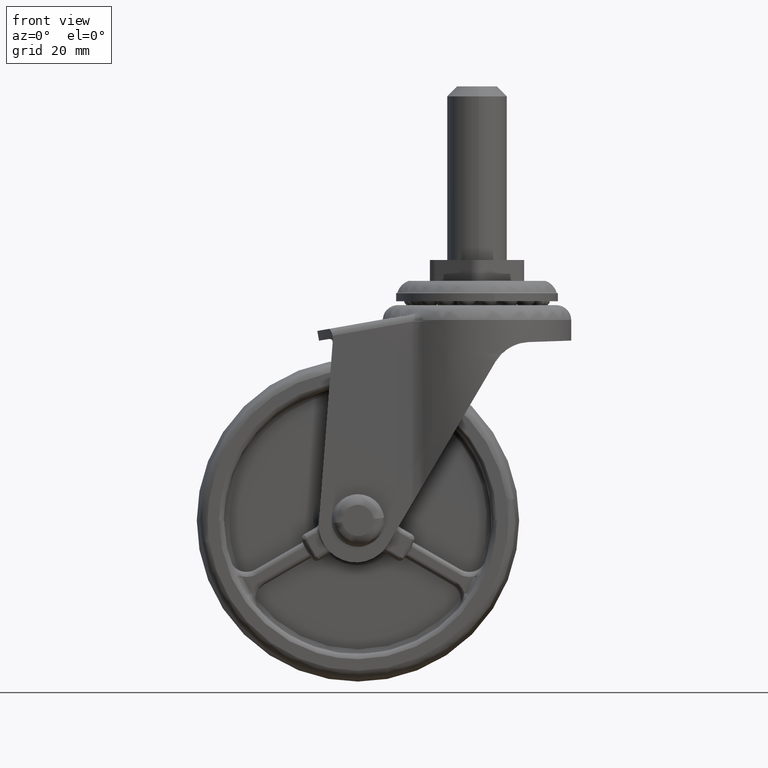
[diagram: clean part render]
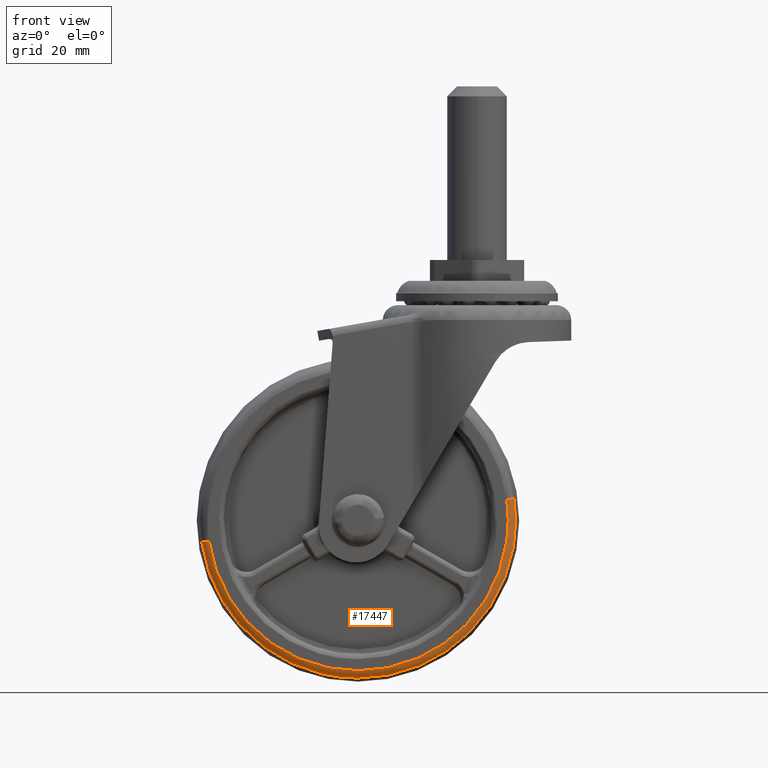
[diagram: same view with one face highlighted and labeled with its STEP entity id]
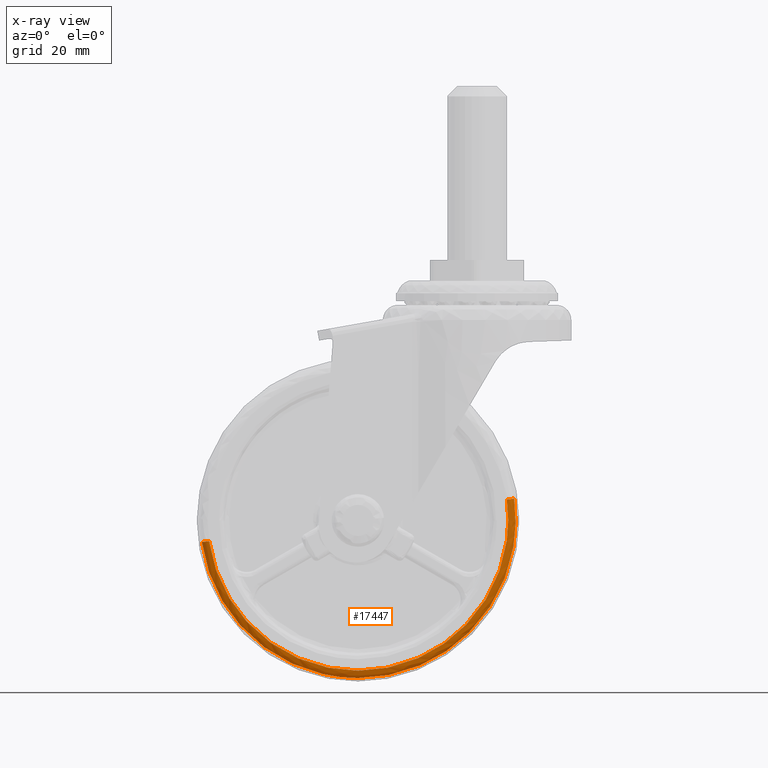
[diagram: x-ray of the same camera — body ghosted, the highlighted face saturated]
A machine part, front view. The second image highlights one B-rep face of the part: STEP entity #17447.
The next image is the same camera in x-ray: the body ghosted, the highlighted face saturated — about 0% of this face is hidden behind the body in this view.
In plain terms, the highlighted face is a freeform B-spline surface patch.
Its self-contained STEP definition (entity closure, byte-faithful):
#17287=CARTESIAN_POINT('',(0.0,-10.500000000000000,-30.303546999999998));
#17288=VERTEX_POINT('',#17287);
#17289=CARTESIAN_POINT('',(30.014494372817360,-10.500000000000000,4.175534551132611));
#17290=VERTEX_POINT('',#17289);
#17291=CARTESIAN_POINT('',(0.0,-10.500000000000000,-30.303546999999998));
#17292=CARTESIAN_POINT('',(30.303547003288955,-10.499999999999998,-30.303546999542448));
#17293=CARTESIAN_POINT('',(30.303547007067120,-10.500000000000000,9.831575E-010));
#17294=CARTESIAN_POINT('',(30.303547007328667,-10.499999999999998,2.097772153836657));
#17295=CARTESIAN_POINT('',(30.014494372817367,-10.500000000000000,4.175534551132611));
#17303=(BOUNDED_CURVE()B_SPLINE_CURVE(2,(#17291,#17292,#17293,#17294,#17295),.UNSPECIFIED.,.F.,.U.)B_SPLINE_CURVE_WITH_KNOTS((3,2,3),(0.0,0.250000000000000,0.273792609107990),.UNSPECIFIED.)CURVE()GEOMETRIC_REPRESENTATION_ITEM()RATIONAL_B_SPLINE_CURVE((1.0,0.707106781186547,1.0,0.972125224537562,0.949556158167530))REPRESENTATION_ITEM(''));
#17304=EDGE_CURVE('',#17288,#17290,#17303,.T.);
#17321=CARTESIAN_POINT('',(-30.014494372817360,-10.500000000000000,-4.175534551132609));
#17322=VERTEX_POINT('',#17321);
#17338=CARTESIAN_POINT('',(-30.014494372817360,-10.500000000000000,-4.175534551132610));
#17339=CARTESIAN_POINT('',(-26.379636577269668,-10.500000000000000,-30.303547000525612));
#17340=CARTESIAN_POINT('',(0.0,-10.500000000000000,-30.303546999999998));
#17348=(BOUNDED_CURVE()B_SPLINE_CURVE(2,(#17338,#17339,#17340),.UNSPECIFIED.,.F.,.U.)B_SPLINE_CURVE_WITH_KNOTS((3,3),(0.773792609107990,1.0),.UNSPECIFIED.)CURVE()GEOMETRIC_REPRESENTATION_ITEM()RATIONAL_B_SPLINE_CURVE((0.949556158167531,0.734981556648985,1.0))REPRESENTATION_ITEM(''));
#17349=EDGE_CURVE('',#17322,#17288,#17348,.T.);
#17360=CARTESIAN_POINT('',(-31.494144311785970,-9.135144101969331,-4.381379412663786));
#17361=CARTESIAN_POINT('',(-27.112764899122183,-9.135144101969329,-35.875523724449764));
#17362=CARTESIAN_POINT('',(4.381379412663790,-9.135144101969331,-31.494144311785970));
#17363=CARTESIAN_POINT('',(35.875523724449764,-9.135144101969329,-27.112764899122183));
#17364=CARTESIAN_POINT('',(31.494144311785970,-9.135144101969331,4.381379412663788));
#17365=CARTESIAN_POINT('',(-31.363735076396864,-10.590586768174505,-4.363237235708647));
#17366=CARTESIAN_POINT('',(-27.000497840688215,-10.590586768174502,-35.726972312105502));
#17367=CARTESIAN_POINT('',(4.363237235708652,-10.590586768174505,-31.363735076396864));
#17368=CARTESIAN_POINT('',(35.726972312105502,-10.590586768174502,-27.000497840688215));
#17369=CARTESIAN_POINT('',(31.363735076396864,-10.590586768174505,4.363237235708650));
#17370=CARTESIAN_POINT('',(-29.919265085907959,-10.496915453140973,-4.162286512428628));
#17371=CARTESIAN_POINT('',(-25.756978573479334,-10.496915453140973,-34.081551598336588));
#17372=CARTESIAN_POINT('',(4.162286512428632,-10.496915453140973,-29.919265085907959));
#17373=CARTESIAN_POINT('',(34.081551598336588,-10.496915453140973,-25.756978573479334));
#17374=CARTESIAN_POINT('',(29.919265085907959,-10.496915453140973,4.162286512428629));
#17382=(BOUNDED_SURFACE()B_SPLINE_SURFACE(2,2,((#17360,#17365,#17370),(#17361,#17366,#17371),(#17362,#17367,#17372),(#17363,#17368,#17373),(#17364,#17369,#17374)),.UNSPECIFIED.,.F.,.F.,.U.)B_SPLINE_SURFACE_WITH_KNOTS((3,2,3),(3,3),(0.0,52.683734553727497,105.367469107454990),(0.0,2.439577379660910),.UNSPECIFIED.)GEOMETRIC_REPRESENTATION_ITEM()RATIONAL_B_SPLINE_SURFACE(((0.916729878597083,0.657098286178849,0.918059102836861),(0.648225913672318,0.464638654063123,0.649165817145983),(0.916729878597083,0.657098286178849,0.918059102836861),(0.648225913672318,0.464638654063123,0.649165817145983),(0.916729878597083,0.657098286178849,0.918059102836861)))REPRESENTATION_ITEM('')SURFACE());
#17383=CARTESIAN_POINT('',(-31.482499973317250,-9.230757934175660,-4.379759484090847));
#17384=VERTEX_POINT('',#17383);
#17385=CARTESIAN_POINT('',(0.0,-9.230754666406810,-31.785691290276240));
#17386=VERTEX_POINT('',#17385);
#17387=CARTESIAN_POINT('',(-31.482499973317243,-9.230757934175660,-4.379759484090848));
#17388=CARTESIAN_POINT('',(-27.669861929599854,-9.230754730769405,-31.785691346694367));
#17389=CARTESIAN_POINT('',(0.0,-9.230754666406810,-31.785691290276240));
#17397=(BOUNDED_CURVE()B_SPLINE_CURVE(2,(#17387,#17388,#17389),.UNSPECIFIED.,.F.,.U.)B_SPLINE_CURVE_WITH_KNOTS((3,3),(0.773792605282419,1.0),.UNSPECIFIED.)CURVE()GEOMETRIC_REPRESENTATION_ITEM()RATIONAL_B_SPLINE_CURVE((0.949556165425211,0.734981552167050,1.0))REPRESENTATION_ITEM(''));
#17398=EDGE_CURVE('',#17384,#17386,#17397,.T.);
#17399=ORIENTED_EDGE('',*,*,#17398,.T.);
#17400=CARTESIAN_POINT('',(31.482499825512100,-9.230758936445062,4.379759463528613));
#17401=VERTEX_POINT('',#17400);
#17402=CARTESIAN_POINT('',(0.0,-9.230754666406810,-31.785691290276240));
#17403=CARTESIAN_POINT('',(31.785689571017297,-9.230754721984495,-31.785691241562695));
#17404=CARTESIAN_POINT('',(31.785689973264830,-9.230758426525393,-0.000000412680717));
#17405=CARTESIAN_POINT('',(31.785690001110538,-9.230758682973368,2.200373743280914));
#17406=CARTESIAN_POINT('',(31.482499825512107,-9.230758936445060,4.379759463528614));
#17414=(BOUNDED_CURVE()B_SPLINE_CURVE(2,(#17402,#17403,#17404,#17405,#17406),.UNSPECIFIED.,.F.,.U.)B_SPLINE_CURVE_WITH_KNOTS((3,2,3),(0.0,0.250000000000000,0.273792610694561),.UNSPECIFIED.)CURVE()GEOMETRIC_REPRESENTATION_ITEM()RATIONAL_B_SPLINE_CURVE((1.0,0.707106781186547,1.0,0.972125222678778,0.949556155157568))REPRESENTATION_ITEM(''));
#17415=EDGE_CURVE('',#17386,#17401,#17414,.T.);
#17416=ORIENTED_EDGE('',*,*,#17415,.T.);
#17417=CARTESIAN_POINT('',(31.482499825512104,-9.230758936445062,4.379759463528614));
#17418=CARTESIAN_POINT('',(31.286773534517209,-10.499999930222071,4.352530556120754));
#17419=CARTESIAN_POINT('',(30.014494372817357,-10.500000000000000,4.175534551132610));
#17427=(BOUNDED_CURVE()B_SPLINE_CURVE(2,(#17417,#17418,#17419),.UNSPECIFIED.,.F.,.U.)B_SPLINE_CURVE_WITH_KNOTS((3,3),(-1.709092779429269,-0.286910038826815),.UNSPECIFIED.)CURVE()GEOMETRIC_REPRESENTATION_ITEM()RATIONAL_B_SPLINE_CURVE((0.894221156764139,0.679666897747121,0.895430606912416))REPRESENTATION_ITEM(''));
#17428=EDGE_CURVE('',#17401,#17290,#17427,.T.);
#17429=ORIENTED_EDGE('',*,*,#17428,.T.);
#17430=ORIENTED_EDGE('',*,*,#17304,.F.);
#17431=ORIENTED_EDGE('',*,*,#17349,.F.);
#17432=CARTESIAN_POINT('',(-31.482499973317250,-9.230757934175660,-4.379759484090847));
#17433=CARTESIAN_POINT('',(-31.286774401039569,-10.499999929704208,-4.352530676668974));
#17434=CARTESIAN_POINT('',(-30.014494372817364,-10.500000000000000,-4.175534551132609));
#17442=(BOUNDED_CURVE()B_SPLINE_CURVE(2,(#17432,#17433,#17434),.UNSPECIFIED.,.F.,.U.)B_SPLINE_CURVE_WITH_KNOTS((3,3),(-1.709093517445047,-0.286910038826814),.UNSPECIFIED.)CURVE()GEOMETRIC_REPRESENTATION_ITEM()RATIONAL_B_SPLINE_CURVE((0.894221379442289,0.679666785780481,0.895430606912416))REPRESENTATION_ITEM(''));
#17443=EDGE_CURVE('',#17384,#17322,#17442,.T.);
#17444=ORIENTED_EDGE('',*,*,#17443,.F.);
#17445=EDGE_LOOP('',(#17399,#17416,#17429,#17430,#17431,#17444));
#17446=FACE_OUTER_BOUND('',#17445,.T.);
#17447=ADVANCED_FACE('',(#17446),#17382,.T.);